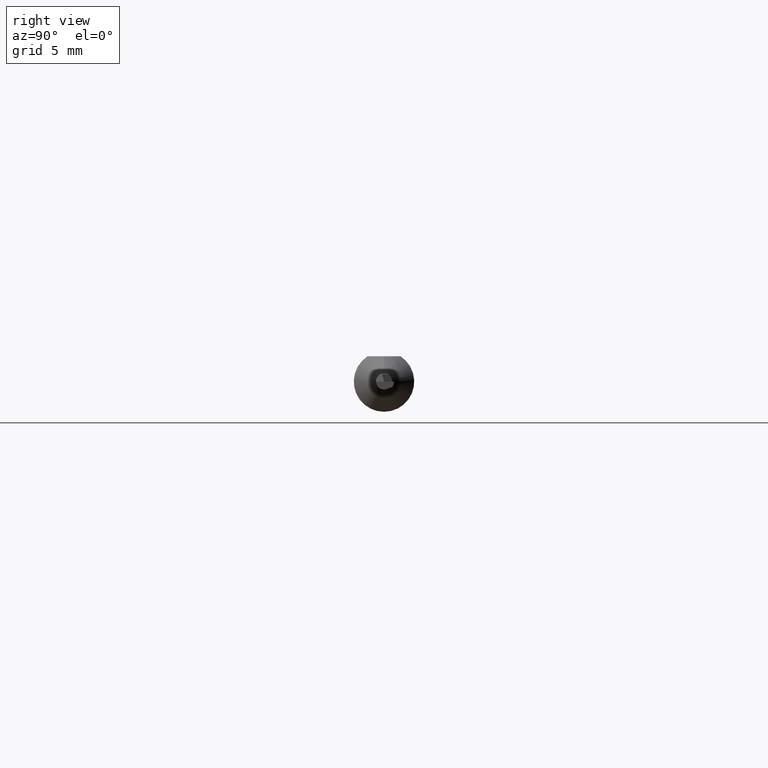
[diagram: clean part render]
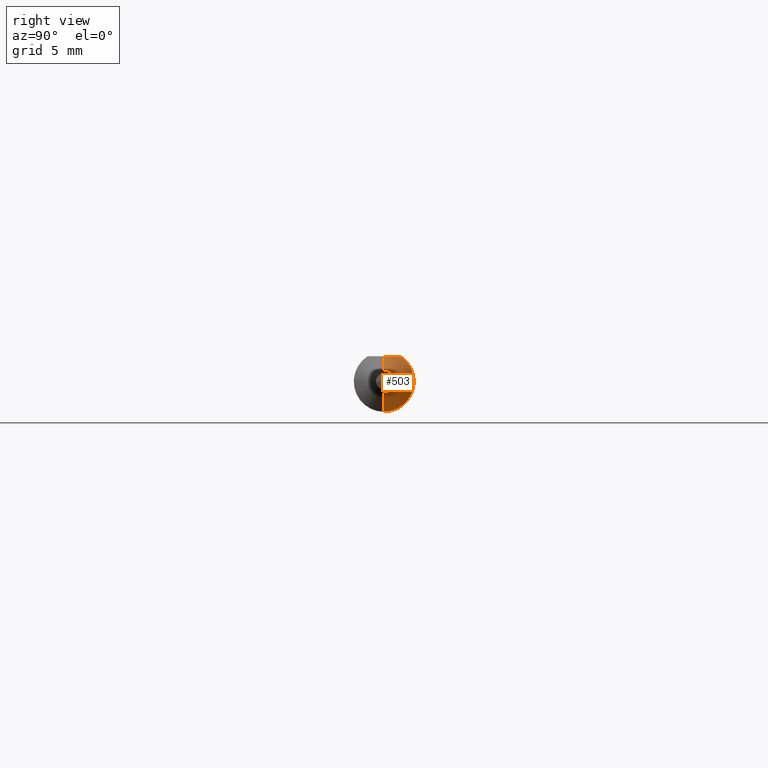
[diagram: same view with one face highlighted and labeled with its STEP entity id]
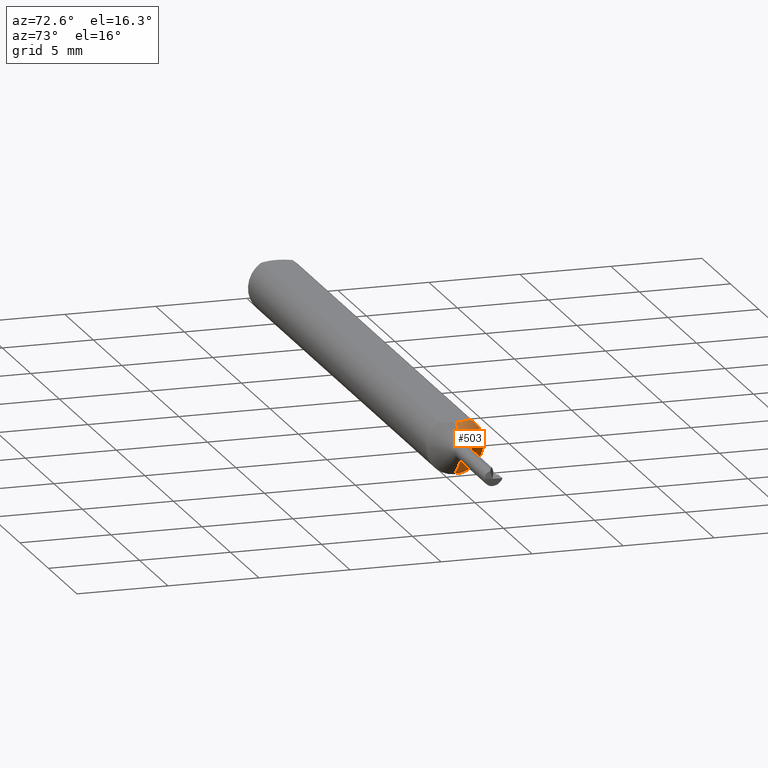
[diagram: same view with one face highlighted and labeled with its STEP entity id]
A machine part, right view. The second image highlights one B-rep face of the part: STEP entity #503.
A second angle (auxiliary view) of the same face is appended — the face is thin or edge-on in the first view.
In plain terms, the highlighted conical surface has half-angle 45 deg.
Its self-contained STEP definition (entity closure, byte-faithful):
#43 = CARTESIAN_POINT ( 'NONE',  ( 1.277677669529663662, 2.917394075872794992E-18, -0.02382233047033641138 ) ) ;
#47 = VECTOR ( 'NONE', #677, 39.37007874015748143 ) ;
#59 = DIRECTION ( 'NONE',  ( 0.000000000000000000, 0.000000000000000000, 1.000000000000000000 ) ) ;
#79 = VERTEX_POINT ( 'NONE', #140 ) ;
#80 = AXIS2_PLACEMENT_3D ( 'NONE', #391, #611, #123 ) ;
#83 = LINE ( 'NONE', #43, #530 ) ;
#90 = CARTESIAN_POINT ( 'NONE',  ( 1.249150000000000205, -2.188252446738582210E-21, 0.05235000000000001458 ) ) ;
#99 = VERTEX_POINT ( 'NONE', #199 ) ;
#123 = DIRECTION ( 'NONE',  ( 0.000000000000000000, 0.000000000000000000, 1.000000000000000000 ) ) ;
#131 = CARTESIAN_POINT ( 'NONE',  ( 1.248078676938162879, 0.01191467125359128854, 0.05235000000000001458 ) ) ;
#140 = CARTESIAN_POINT ( 'NONE',  ( 1.239150000000000418, 0.03386738844375220686, 0.05235000000000000070 ) ) ;
#141 = EDGE_CURVE ( 'NONE', #403, #669, #83, .T. ) ;
#142 = CARTESIAN_POINT ( 'NONE',  ( 1.244488220844932602, 0.02320483992252773964, 0.05235000000000002152 ) ) ;
#159 = ORIENTED_EDGE ( 'NONE', *, *, #141, .T. ) ;
#198 = LINE ( 'NONE', #633, #47 ) ;
#199 = CARTESIAN_POINT ( 'NONE',  ( 1.249150000000000205, -2.188252446738582210E-21, 0.05235000000000001458 ) ) ;
#204 = EDGE_LOOP ( 'NONE', ( #599, #159, #368, #604, #329 ) ) ;
#249 = CARTESIAN_POINT ( 'NONE',  ( 1.239150000000000418, 7.635672792683746671E-18, -0.06235000000000000264 ) ) ;
#298 = AXIS2_PLACEMENT_3D ( 'NONE', #483, #548, #327 ) ;
#299 = CARTESIAN_POINT ( 'NONE',  ( 1.277677669529663662, 0.000000000000000000, 0.02382233047033639403 ) ) ;
#327 = DIRECTION ( 'NONE',  ( 0.000000000000000000, 0.000000000000000000, 1.000000000000000000 ) ) ;
#329 = ORIENTED_EDGE ( 'NONE', *, *, #608, .F. ) ;
#352 = EDGE_CURVE ( 'NONE', #79, #669, #447, .T. ) ;
#359 = AXIS2_PLACEMENT_3D ( 'NONE', #376, #424, #59 ) ;
#368 = ORIENTED_EDGE ( 'NONE', *, *, #352, .F. ) ;
#372 = EDGE_CURVE ( 'NONE', #550, #403, #637, .T. ) ;
#376 = CARTESIAN_POINT ( 'NONE',  ( 1.277677669529663662, 0.000000000000000000, 0.000000000000000000 ) ) ;
#382 = CARTESIAN_POINT ( 'NONE',  ( 1.277677669529663662, 2.917394075872792296E-18, -0.02382233047033639403 ) ) ;
#391 = CARTESIAN_POINT ( 'NONE',  ( 1.277677669529663662, 0.000000000000000000, 0.000000000000000000 ) ) ;
#403 = VERTEX_POINT ( 'NONE', #382 ) ;
#414 = CARTESIAN_POINT ( 'NONE',  ( 1.241993063989529800, 0.02863329606483933434, 0.05235000000000002152 ) ) ;
#424 = DIRECTION ( 'NONE',  ( -1.000000000000000000, -0.000000000000000000, -0.000000000000000000 ) ) ;
#447 = CIRCLE ( 'NONE', #298, 0.06235000000000000264 ) ;
#449 = FACE_OUTER_BOUND ( 'NONE', #204, .T. ) ;
#483 = CARTESIAN_POINT ( 'NONE',  ( 1.239150000000000418, 0.000000000000000000, 0.000000000000000000 ) ) ;
#503 = ADVANCED_FACE ( 'NONE', ( #449 ), #635, .T. ) ;
#530 = VECTOR ( 'NONE', #583, 39.37007874015748143 ) ;
#544 = EDGE_CURVE ( 'NONE', #79, #99, #678, .T. ) ;
#548 = DIRECTION ( 'NONE',  ( -1.000000000000000000, -0.000000000000000000, -0.000000000000000000 ) ) ;
#550 = VERTEX_POINT ( 'NONE', #299 ) ;
#569 = CARTESIAN_POINT ( 'NONE',  ( 1.239150000000000418, 0.03386738844375220686, 0.05235000000000000070 ) ) ;
#579 = CARTESIAN_POINT ( 'NONE',  ( 1.249150000000000427, 0.005920875246928953770, 0.05235000000000002152 ) ) ;
#583 = DIRECTION ( 'NONE',  ( -0.7071067811865450192, 8.659560562354963673E-17, -0.7071067811865500152 ) ) ;
#599 = ORIENTED_EDGE ( 'NONE', *, *, #372, .T. ) ;
#604 = ORIENTED_EDGE ( 'NONE', *, *, #544, .T. ) ;
#608 = EDGE_CURVE ( 'NONE', #550, #99, #198, .T. ) ;
#611 = DIRECTION ( 'NONE',  ( -1.000000000000000000, -0.000000000000000000, -0.000000000000000000 ) ) ;
#633 = CARTESIAN_POINT ( 'NONE',  ( 1.277677669529663662, 0.000000000000000000, 0.02382233047033641138 ) ) ;
#635 = CONICAL_SURFACE ( 'NONE', #80, 0.02382233047033641138, 0.7853981633974518317 ) ;
#637 = CIRCLE ( 'NONE', #359, 0.02382233047033641138 ) ;
#669 = VERTEX_POINT ( 'NONE', #249 ) ;
#677 = DIRECTION ( 'NONE',  ( -0.7071067811865450192, 0.000000000000000000, 0.7071067811865500152 ) ) ;
#678 = B_SPLINE_CURVE_WITH_KNOTS ( 'NONE', 3,
 ( #569, #414, #142, #131, #579, #90 ),
 .UNSPECIFIED., .F., .F.,
 ( 4, 2, 4 ),
 ( 0.002053575827796383715, 0.002502514900742337442, 0.002951453973688291169 ),
 .UNSPECIFIED. ) ;